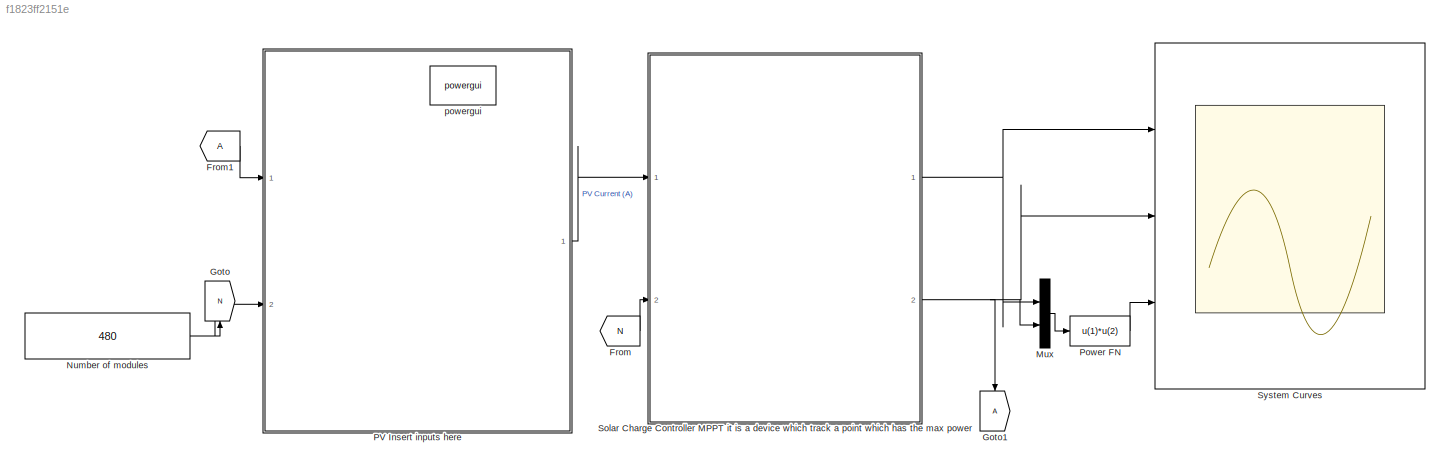
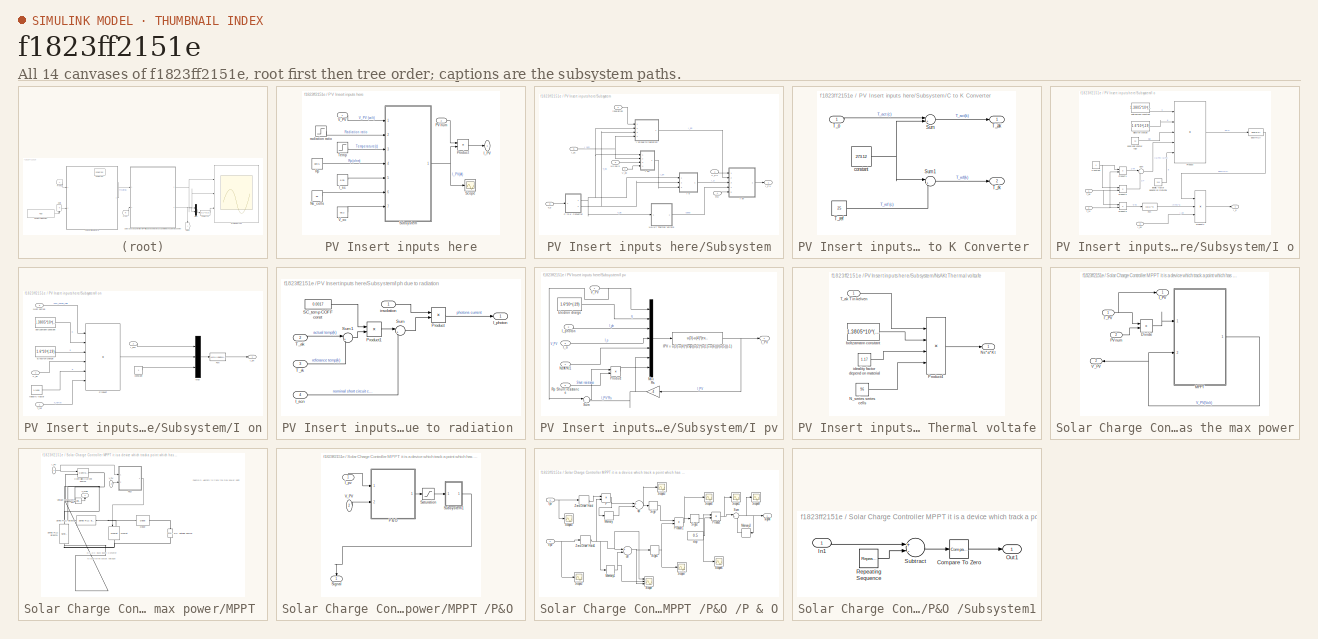
[diagram: thumbnail index - all 14 canvases of the model, root first then tree order]
MODEL slx_f1823ff2151e
KIND model
CONFIG AbsTol = auto
CONFIG EnableMultiTasking = on
CONFIG FixedStep = auto
CONFIG MaxStep = auto
CONFIG MinStep = .00000001
CONFIG RelTol = 1e-7
CONFIG SampleTimeConstraint = Unconstrained
CONFIG Solver = ode45
CONFIG SolverName = ode45
CONFIG StartTime = 0.0
CONFIG StopTime = 10
BLOCK [From] From
  GotoTag = N
BLOCK [From] From1
BLOCK [Goto] Goto
  GotoTag = N
BLOCK [Goto] Goto1
BLOCK [Mux] Mux
  DisplayOption = bar
  Inputs = 2
  Ports = [2, 1]
BLOCK [Constant] Number of modules
  Value = 480
BLOCK [SubSystem] PV Insert inputs here
  Ports = [2, 1]
  RequestExecContextInheritance = off
  Variant = off
BLOCK [Outport] PV Insert inputs here/I_PV
  IconDisplay = Port number
BLOCK [Constant] PV Insert inputs here/I_sc
  Value = 6.39
BLOCK [Constant] PV Insert inputs here/Ns_cells
  Value = 96
BLOCK [Inport] PV Insert inputs here/PV num
  IconDisplay = Port number
  Port = 2
BLOCK [Product] PV Insert inputs here/Product
  InputSameDT = off
  OutDataTypeStr = Inherit: Inherit via internal rule
  Ports = [2, 1]
  RndMeth = Floor
  SaturateOnIntegerOverflow = off
BLOCK [Constant] PV Insert inputs here/Rp
  Value = 884.5
BLOCK [Scope] PV Insert inputs here/Scope
  NumInputPorts = 1
  Ports = [1]
  ScopeSpecificationString = Simulink.scopes.TimeScopeBlockCfg('CurrentConfiguration', extmgr.ConfigurationSet(extmgr.Configuration('Core','General UI',true),extmgr.Configuration('Core','Source UI',true),extmgr.Configuration('Sources','WiredSimulink',true,'DataLoggingVariableName','ScopeData2'),extmgr.Configuration('Visuals','Time Domain',true,'SerializedDisplays',{struct('MinYLimReal','-1.69273','MaxYLimReal','7.2085','YLabe...<+1381ch>
BLOCK [SubSystem] PV Insert inputs here/Subsystem
  Ports = [7, 1]
  RequestExecContextInheritance = off
  Variant = off
BLOCK [SubSystem] PV Insert inputs here/Subsystem/C to K Converter 
  Ports = [1, 2]
  RequestExecContextInheritance = off
  Variant = off
BLOCK [Sum] PV Insert inputs here/Subsystem/C to K Converter /Sum
  IconShape = round
  InputSameDT = off
  Inputs = |++
  OutDataTypeStr = Inherit: Inherit via internal rule
  Ports = [2, 1]
  SaturateOnIntegerOverflow = off
BLOCK [Sum] PV Insert inputs here/Subsystem/C to K Converter /Sum1
  IconShape = round
  InputSameDT = off
  Inputs = |++
  OutDataTypeStr = Inherit: Inherit via internal rule
  Ports = [2, 1]
  SaturateOnIntegerOverflow = off
BLOCK [Outport] PV Insert inputs here/Subsystem/C to K Converter /T_ak
  IconDisplay = Port number
BLOCK [Inport] PV Insert inputs here/Subsystem/C to K Converter /T_o
  IconDisplay = Port number
BLOCK [Constant] PV Insert inputs here/Subsystem/C to K Converter /T_ref
  Value = 25
BLOCK [Outport] PV Insert inputs here/Subsystem/C to K Converter /T_rk
  IconDisplay = Port number
  Port = 2
BLOCK [Constant] PV Insert inputs here/Subsystem/C to K Converter /constant
  Value = 273.12
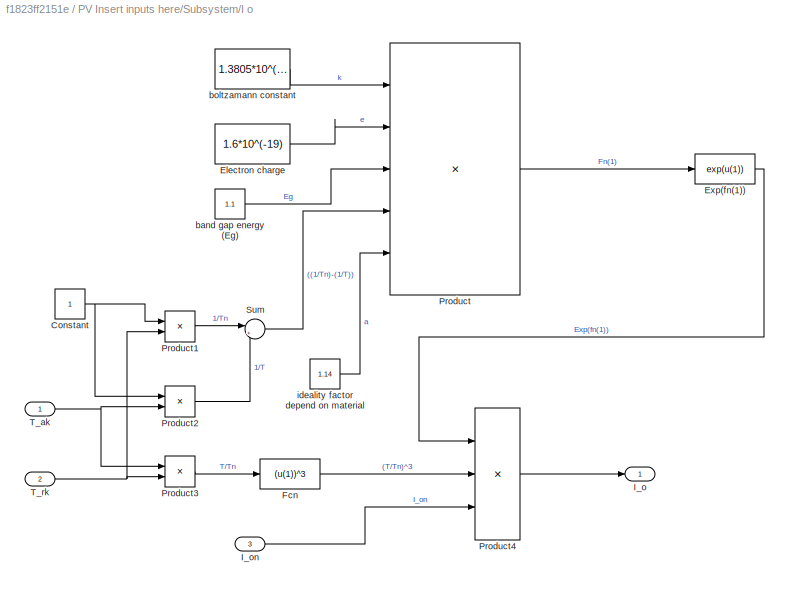
BLOCK [SubSystem] PV Insert inputs here/Subsystem/I o
  Ports = [3, 1]
  RequestExecContextInheritance = off
  Variant = off
BLOCK [Constant] PV Insert inputs here/Subsystem/I o/Constant
BLOCK [Constant] PV Insert inputs here/Subsystem/I o/Electron charge
  Value = 1.6*10^(-19)
BLOCK [Fcn] PV Insert inputs here/Subsystem/I o/Exp(fn(1))
  Expr = exp(u(1))
BLOCK [Fcn] PV Insert inputs here/Subsystem/I o/Fcn
  Expr = (u(1))^3
BLOCK [Outport] PV Insert inputs here/Subsystem/I o/I_o
  IconDisplay = Port number
BLOCK [Inport] PV Insert inputs here/Subsystem/I o/I_on
  IconDisplay = Port number
  Port = 3
BLOCK [Product] PV Insert inputs here/Subsystem/I o/Product
  InputSameDT = off
  Inputs = /***/
  OutDataTypeStr = Inherit: Inherit via internal rule
  Ports = [5, 1]
  RndMeth = Floor
  SaturateOnIntegerOverflow = off
BLOCK [Product] PV Insert inputs here/Subsystem/I o/Product1
  InputSameDT = off
  Inputs = */
  OutDataTypeStr = Inherit: Inherit via internal rule
  Ports = [2, 1]
  RndMeth = Floor
  SaturateOnIntegerOverflow = off
BLOCK [Product] PV Insert inputs here/Subsystem/I o/Product2
  InputSameDT = off
  Inputs = */
  OutDataTypeStr = Inherit: Inherit via internal rule
  Ports = [2, 1]
  RndMeth = Floor
  SaturateOnIntegerOverflow = off
BLOCK [Product] PV Insert inputs here/Subsystem/I o/Product3
  InputSameDT = off
  Inputs = */
  OutDataTypeStr = Inherit: Inherit via internal rule
  Ports = [2, 1]
  RndMeth = Floor
  SaturateOnIntegerOverflow = off
BLOCK [Product] PV Insert inputs here/Subsystem/I o/Product4
  InputSameDT = off
  Inputs = 3
  OutDataTypeStr = Inherit: Inherit via internal rule
  Ports = [3, 1]
  RndMeth = Floor
  SaturateOnIntegerOverflow = off
BLOCK [Sum] PV Insert inputs here/Subsystem/I o/Sum
  IconShape = round
  InputSameDT = off
  Inputs = |+-
  OutDataTypeStr = Inherit: Inherit via internal rule
  Ports = [2, 1]
  SaturateOnIntegerOverflow = off
BLOCK [Inport] PV Insert inputs here/Subsystem/I o/T_ak
  IconDisplay = Port number
BLOCK [Inport] PV Insert inputs here/Subsystem/I o/T_rk
  IconDisplay = Port number
  Port = 2
BLOCK [Constant] PV Insert inputs here/Subsystem/I o/band gap energy (Eg)
  Value = 1.1
BLOCK [Constant] PV Insert inputs here/Subsystem/I o/boltzamann constant
  Value = 1.3805*10^(-23)
BLOCK [Constant] PV Insert inputs here/Subsystem/I o/ideality factor depend on material
  Value = 1.14
BLOCK [SubSystem] PV Insert inputs here/Subsystem/I on
  Ports = [4, 1]
  RequestExecContextInheritance = off
  Variant = off
BLOCK [Constant] PV Insert inputs here/Subsystem/I on/Electron charge
  Value = 1.6*10^(-19)
BLOCK [Fcn] PV Insert inputs here/Subsystem/I on/Fcn
  Expr = (u(1))/(exp(u(2))-u(1))
BLOCK [Outport] PV Insert inputs here/Subsystem/I on/I_on
  IconDisplay = Port number
BLOCK [Inport] PV Insert inputs here/Subsystem/I on/I_scn
  IconDisplay = Port number
  Port = 2
BLOCK [Mux] PV Insert inputs here/Subsystem/I on/Mux
  DisplayOption = bar
  Inputs = 3
  Ports = [3, 1]
BLOCK [Inport] PV Insert inputs here/Subsystem/I on/Num series
  IconDisplay = Port number
  Port = 3
BLOCK [Product] PV Insert inputs here/Subsystem/I on/Product
  InputSameDT = off
  Inputs = //**//
  OutDataTypeStr = Inherit: Inherit via internal rule
  Ports = [6, 1]
  RndMeth = Floor
  SaturateOnIntegerOverflow = off
BLOCK [Inport] PV Insert inputs here/Subsystem/I on/T_ref
  IconDisplay = Port number
BLOCK [Inport] PV Insert inputs here/Subsystem/I on/V_oc
  IconDisplay = Port number
  Port = 4
BLOCK [Constant] PV Insert inputs here/Subsystem/I on/boltzamann constant
  Value = 1.3805*10^(-23)
BLOCK [Constant] PV Insert inputs here/Subsystem/I on/constant
BLOCK [Constant] PV Insert inputs here/Subsystem/I on/ideality factor
  Value = 1.1415
BLOCK [SubSystem] PV Insert inputs here/Subsystem/I ph due to radiation 
  Ports = [4, 1]
  RequestExecContextInheritance = off
  Variant = off
BLOCK [Outport] PV Insert inputs here/Subsystem/I ph due to radiation /I_photon
  IconDisplay = Port number
BLOCK [Inport] PV Insert inputs here/Subsystem/I ph due to radiation /I_scn
  IconDisplay = Port number
  Port = 4
BLOCK [Product] PV Insert inputs here/Subsystem/I ph due to radiation /Product
  InputSameDT = off
  OutDataTypeStr = Inherit: Inherit via internal rule
  Ports = [2, 1]
  RndMeth = Floor
  SaturateOnIntegerOverflow = off
BLOCK [Product] PV Insert inputs here/Subsystem/I ph due to radiation /Product1
  InputSameDT = off
  OutDataTypeStr = Inherit: Inherit via internal rule
  Ports = [2, 1]
  RndMeth = Floor
  SaturateOnIntegerOverflow = off
BLOCK [Constant] PV Insert inputs here/Subsystem/I ph due to radiation /SC_temp COFF const
  Value = 0.0017
BLOCK [Sum] PV Insert inputs here/Subsystem/I ph due to radiation /Sum
  IconShape = round
  InputSameDT = off
  Inputs = |++
  OutDataTypeStr = Inherit: Inherit via internal rule
  Ports = [2, 1]
  SaturateOnIntegerOverflow = off
BLOCK [Sum] PV Insert inputs here/Subsystem/I ph due to radiation /Sum1
  IconShape = round
  InputSameDT = off
  Inputs = |+-
  OutDataTypeStr = Inherit: Inherit via internal rule
  Ports = [2, 1]
  SaturateOnIntegerOverflow = off
BLOCK [Inport] PV Insert inputs here/Subsystem/I ph due to radiation /T_ak
  IconDisplay = Port number
  Port = 2
BLOCK [Inport] PV Insert inputs here/Subsystem/I ph due to radiation /T_rk
  IconDisplay = Port number
  Port = 3
BLOCK [Inport] PV Insert inputs here/Subsystem/I ph due to radiation /insolation
  IconDisplay = Port number
BLOCK [SubSystem] PV Insert inputs here/Subsystem/I pv
  Ports = [5, 1]
  RequestExecContextInheritance = off
  Variant = off
BLOCK [Constant] PV Insert inputs here/Subsystem/I pv/Electron charge
  Value = 1.6*10^(-19)
BLOCK [Fcn] PV Insert inputs here/Subsystem/I pv/IPV = u(3)-u(4)*(exp((u(2)*(u(1)+u(6)))//(u(5)))-1)
  Expr = u(3)-u(4)*(exp((u(2)*(u(1)+u(6)))/(u(5)))-1)-u(7)
BLOCK [Outport] PV Insert inputs here/Subsystem/I pv/I_PV
  IconDisplay = Port number
BLOCK [Inport] PV Insert inputs here/Subsystem/I pv/I_o
  IconDisplay = Port number
  Port = 3
BLOCK [Inport] PV Insert inputs here/Subsystem/I pv/I_photon
  IconDisplay = Port number
  Port = 2
BLOCK [Mux] PV Insert inputs here/Subsystem/I pv/Mux
  DisplayOption = bar
  Inputs = 7
  Ports = [7, 1]
BLOCK [Inport] PV Insert inputs here/Subsystem/I pv/Ns*A*Kt1
  IconDisplay = Port number
  Port = 4
BLOCK [Product] PV Insert inputs here/Subsystem/I pv/Product
  InputSameDT = off
  Inputs = */
  OutDataTypeStr = Inherit: Inherit via internal rule
  Ports = [2, 1]
  RndMeth = Floor
  SaturateOnIntegerOverflow = off
BLOCK [Inport] PV Insert inputs here/Subsystem/I pv/Rp Shunt resistance
  IconDisplay = Port number
  Port = 5
BLOCK [Gain] PV Insert inputs here/Subsystem/I pv/Rs
  Gain = .4
  OutDataTypeStr = Inherit: Inherit via internal rule
  ParamDataTypeStr = Inherit: Inherit via internal rule
  SaturateOnIntegerOverflow = off
BLOCK [Sum] PV Insert inputs here/Subsystem/I pv/Sum
  IconShape = round
  InputSameDT = off
  Inputs = |++
  OutDataTypeStr = Inherit: Inherit via internal rule
  Ports = [2, 1]
  SaturateOnIntegerOverflow = off
BLOCK [Inport] PV Insert inputs here/Subsystem/I pv/V_PV
  IconDisplay = Port number
BLOCK [Outport] PV Insert inputs here/Subsystem/I_PV
  IconDisplay = Port number
BLOCK [Inport] PV Insert inputs here/Subsystem/I_sc
  IconDisplay = Port number
  Port = 5
BLOCK [Inport] PV Insert inputs here/Subsystem/Ns cells
  IconDisplay = Port number
  Port = 6
BLOCK [SubSystem] PV Insert inputs here/Subsystem/NsAKt Thermal voltafe
  Ports = [1, 1]
  RequestExecContextInheritance = off
  Variant = off
BLOCK [Constant] PV Insert inputs here/Subsystem/NsAKt Thermal voltafe/N_series series cells
  Value = 96
BLOCK [Outport] PV Insert inputs here/Subsystem/NsAKt Thermal voltafe/Ns*a*Kt
  IconDisplay = Port number
BLOCK [Product] PV Insert inputs here/Subsystem/NsAKt Thermal voltafe/Product4
  InputSameDT = off
  Inputs = 4
  OutDataTypeStr = Inherit: Inherit via internal rule
  Ports = [4, 1]
  RndMeth = Floor
  SaturateOnIntegerOverflow = off
BLOCK [Inport] PV Insert inputs here/Subsystem/NsAKt Thermal voltafe/T_ak T in kelven
  IconDisplay = Port number
BLOCK [Constant] PV Insert inputs here/Subsystem/NsAKt Thermal voltafe/boltzamann constant
  Value = 1.3805*10^(-23)
BLOCK [Constant] PV Insert inputs here/Subsystem/NsAKt Thermal voltafe/ideality factor depend on material
  Value = 1.17
BLOCK [Inport] PV Insert inputs here/Subsystem/Rp
  IconDisplay = Port number
  Port = 4
BLOCK [Inport] PV Insert inputs here/Subsystem/T_o
  IconDisplay = Port number
  Port = 3
BLOCK [Inport] PV Insert inputs here/Subsystem/V_PV
  IconDisplay = Port number
BLOCK [Inport] PV Insert inputs here/Subsystem/V_oc
  IconDisplay = Port number
  Port = 7
BLOCK [Inport] PV Insert inputs here/Subsystem/insolation
  IconDisplay = Port number
  Port = 2
BLOCK [Step] PV Insert inputs here/Temp
  After = 25
  Before = 25
  SampleTime = 0
  Time = 5
BLOCK [Inport] PV Insert inputs here/V_PV
  IconDisplay = Port number
BLOCK [Constant] PV Insert inputs here/V_oc
  Value = 68.2
BLOCK [Step] PV Insert inputs here/radiation ratio
  Before = 1
  SampleTime = 0
BLOCK [Fcn] Power FN 
  Expr = u(1)*u(2)
BLOCK [SubSystem] Solar Charge Controller MPPT it is a device which track a point which has the max power
  Ports = [2, 2]
  RequestExecContextInheritance = off
  Variant = off
BLOCK [Product] Solar Charge Controller MPPT it is a device which track a point which has the max power/Divide
  InputSameDT = off
  Inputs = */
  OutDataTypeStr = Inherit: Inherit via internal rule
  Ports = [2, 1]
  RndMeth = Floor
  SaturateOnIntegerOverflow = off
BLOCK [Inport] Solar Charge Controller MPPT it is a device which track a point which has the max power/I'_PV
  IconDisplay = Port number
BLOCK [Outport] Solar Charge Controller MPPT it is a device which track a point which has the max power/I_PV
  IconDisplay = Port number
BLOCK [SubSystem] Solar Charge Controller MPPT it is a device which track a point which has the max power/MPPT 
  Ports = [2, 1]
  RequestExecContextInheritance = off
  Variant = off
BLOCK [Reference] Solar Charge Controller MPPT it is a device which track a point which has the max power/MPPT /Controlled Current Source  REF=powerlib/Electrical
Sources/Controlled Current Source
  Ports = [1, 0, 0, 0, 0, 1, 1]
  SourceBlock = powerlib/Electrical\nSources/Controlled Current Source
  SourceProductBaseCode = PS
  SourceProductName = Simscape Power Systems
  SourceType = Controlled Current Source
BLOCK [Reference] Solar Charge Controller MPPT it is a device which track a point which has the max power/MPPT /DC Voltage Source  REF=powerlib/Electrical
Sources/DC Voltage Source
  Ports = [0, 0, 0, 0, 0, 1, 1]
  SourceBlock = powerlib/Electrical\nSources/DC Voltage Source
  SourceProductBaseCode = PS
  SourceProductName = Simscape Power Systems
  SourceType = DC Voltage Source
BLOCK [Reference] Solar Charge Controller MPPT it is a device which track a point which has the max power/MPPT /Diode  REF=powerlib/Power
Electronics/Diode
  Ports = [0, 0, 0, 0, 0, 1, 1]
  SourceBlock = powerlib/Power\nElectronics/Diode
  SourceProductBaseCode = PS
  SourceProductName = Simscape Power Systems
  SourceType = Diode
BLOCK [Inport] Solar Charge Controller MPPT it is a device which track a point which has the max power/MPPT /I_PV
  IconDisplay = Port number
BLOCK [Reference] Solar Charge Controller MPPT it is a device which track a point which has the max power/MPPT /Mosfet  REF=powerlib/Power
Electronics/Mosfet
  Ports = [1, 0, 0, 0, 0, 1, 1]
  SourceBlock = powerlib/Power\nElectronics/Mosfet
  SourceProductBaseCode = PS
  SourceProductName = Simscape Power Systems
  SourceType = Mosfet
BLOCK [SubSystem] Solar Charge Controller MPPT it is a device which track a point which has the max power/MPPT /P&O 
  Ports = [2, 1]
  RequestExecContextInheritance = off
  Variant = off
BLOCK [Inport] Solar Charge Controller MPPT it is a device which track a point which has the max power/MPPT /P&O /I_pv
  IconDisplay = Port number
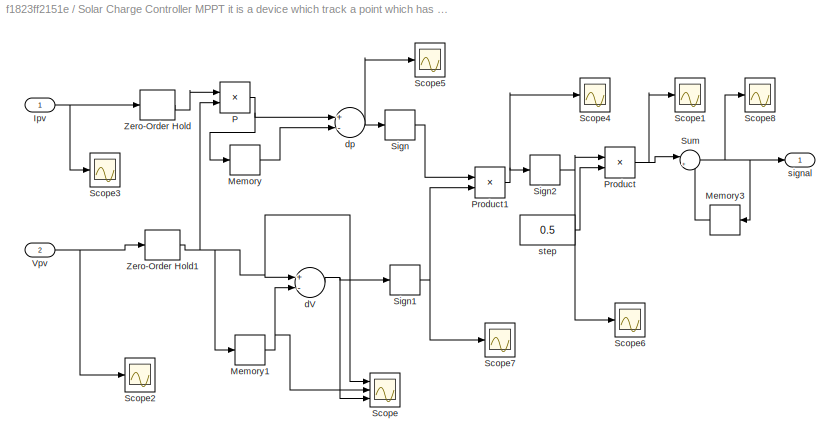
BLOCK [SubSystem] Solar Charge Controller MPPT it is a device which track a point which has the max power/MPPT /P&O /P & O
  Ports = [2, 1]
  RequestExecContextInheritance = off
  Variant = off
BLOCK [Inport] Solar Charge Controller MPPT it is a device which track a point which has the max power/MPPT /P&O /P & O/Ipv
  IconDisplay = Port number
BLOCK [Memory] Solar Charge Controller MPPT it is a device which track a point which has the max power/MPPT /P&O /P & O/Memory
  InheritSampleTime = on
BLOCK [Memory] Solar Charge Controller MPPT it is a device which track a point which has the max power/MPPT /P&O /P & O/Memory1
  InheritSampleTime = on
BLOCK [Memory] Solar Charge Controller MPPT it is a device which track a point which has the max power/MPPT /P&O /P & O/Memory3
  InheritSampleTime = on
BLOCK [Product] Solar Charge Controller MPPT it is a device which track a point which has the max power/MPPT /P&O /P & O/P
  InputSameDT = off
  OutDataTypeStr = Inherit: Inherit via internal rule
  Ports = [2, 1]
  SaturateOnIntegerOverflow = off
BLOCK [Product] Solar Charge Controller MPPT it is a device which track a point which has the max power/MPPT /P&O /P & O/Product
  InputSameDT = off
  OutDataTypeStr = Inherit: Inherit via internal rule
  Ports = [2, 1]
  SaturateOnIntegerOverflow = off
BLOCK [Product] Solar Charge Controller MPPT it is a device which track a point which has the max power/MPPT /P&O /P & O/Product1
  InputSameDT = off
  OutDataTypeStr = Inherit: Inherit via internal rule
  Ports = [2, 1]
  SaturateOnIntegerOverflow = off
BLOCK [Scope] Solar Charge Controller MPPT it is a device which track a point which has the max power/MPPT /P&O /P & O/Scope
  NumInputPorts = 3
  Ports = [3]
  ScopeSpecificationString = C++SS(StrPVP('Location','[11, 60, 1027, 737]'),StrPVP('Open','off'),StrPVP('ZoomMode','yonly'),MxPVP('AxesTitles',53,'struct(''axes1'',''%<SignalLabel>'',''axes2'',''%<SignalLabel>'',''axes3'',''%<SignalLabel>'')'),MxPVP('ScopeGraphics',56,'struct(''FigureColor'',''[0.5 0.5 0.5]'',''AxesColor'',''[0 0 0]'',''AxesTickColor'',''[1 1 1]'',''LineColors'',''[1 1 0;1 0 1;0 1 1;1 0 0;0 1 0;0 0 1]'',''Lin...<+378ch>
BLOCK [Scope] Solar Charge Controller MPPT it is a device which track a point which has the max power/MPPT /P&O /P & O/Scope1
  NumInputPorts = 1
  Ports = [1]
  ScopeSpecificationString = C++SS(StrPVP('Location','[11, 60, 1027, 737]'),StrPVP('Open','off'),StrPVP('ZoomMode','yonly'),MxPVP('AxesTitles',53,'struct(''axes1'',''%<SignalLabel>'')'),MxPVP('ScopeGraphics',56,'struct(''FigureColor'',''[0.5 0.5 0.5]'',''AxesColor'',''[0 0 0]'',''AxesTickColor'',''[1 1 1]'',''LineColors'',''[1 1 0;1 0 1;0 1 1;1 0 0;0 1 0;0 0 1]'',''LineStyles'',''-|-|-|-|-|-'',''LineWidths'',''[0.5 0.5 0.5 0....<+320ch>
BLOCK [Scope] Solar Charge Controller MPPT it is a device which track a point which has the max power/MPPT /P&O /P & O/Scope2
  NumInputPorts = 1
  Ports = [1]
  ScopeSpecificationString = C++SS(StrPVP('Location','[1, 52, 1017, 729]'),StrPVP('Open','off'),StrPVP('ZoomMode','yonly'),MxPVP('AxesTitles',53,'struct(''axes1'',''%<SignalLabel>'')'),StrPVP('YMin','-11'),StrPVP('YMax','10'),StrPVP('SaveName','ScopeData35'),StrPVP('DataFormat','StructureWithTime'),StrPVP('LimitDataPoints','off'),StrPVP('BlockParamSampleTime','0'),StrPVP('Decimation','1'),StrPVP('BlockParamSampleInput','off')...<+1ch>
BLOCK [Scope] Solar Charge Controller MPPT it is a device which track a point which has the max power/MPPT /P&O /P & O/Scope3
  NumInputPorts = 1
  Ports = [1]
  ScopeSpecificationString = C++SS(StrPVP('Location','[1, 52, 1017, 729]'),StrPVP('Open','off'),StrPVP('ZoomMode','yonly'),MxPVP('AxesTitles',53,'struct(''axes1'',''%<SignalLabel>'')'),StrPVP('YMin','-11'),StrPVP('YMax','10'),StrPVP('SaveName','ScopeData36'),StrPVP('DataFormat','StructureWithTime'),StrPVP('LimitDataPoints','off'),StrPVP('BlockParamSampleTime','0'),StrPVP('Decimation','1'),StrPVP('BlockParamSampleInput','off')...<+1ch>
BLOCK [Scope] Solar Charge Controller MPPT it is a device which track a point which has the max power/MPPT /P&O /P & O/Scope4
  NumInputPorts = 1
  Ports = [1]
  ScopeSpecificationString = C++SS(StrPVP('Location','[11, 60, 1027, 737]'),StrPVP('Open','off'),StrPVP('ZoomMode','yonly'),MxPVP('AxesTitles',53,'struct(''axes1'',''%<SignalLabel>'')'),MxPVP('ScopeGraphics',56,'struct(''FigureColor'',''[0.5 0.5 0.5]'',''AxesColor'',''[0 0 0]'',''AxesTickColor'',''[1 1 1]'',''LineColors'',''[1 1 0;1 0 1;0 1 1;1 0 0;0 1 0;0 0 1]'',''LineStyles'',''-|-|-|-|-|-'',''LineWidths'',''[0.5 0.5 0.5 0....<+312ch>
BLOCK [Scope] Solar Charge Controller MPPT it is a device which track a point which has the max power/MPPT /P&O /P & O/Scope5
  NumInputPorts = 1
  Ports = [1]
  ScopeSpecificationString = C++SS(StrPVP('Location','[1, 49, 1367, 727]'),StrPVP('Open','off'),StrPVP('ZoomMode','yonly'),MxPVP('AxesTitles',53,'struct(''axes1'',''%<SignalLabel>'')'),MxPVP('ScopeGraphics',56,'struct(''FigureColor'',''[0.5 0.5 0.5]'',''AxesColor'',''[0 0 0]'',''AxesTickColor'',''[1 1 1]'',''LineColors'',''[1 1 0;1 0 1;0 1 1;1 0 0;0 1 0;0 0 1]'',''LineStyles'',''-|-|-|-|-|-'',''LineWidths'',''[0.5 0.5 0.5 0.5...<+310ch>
BLOCK [Scope] Solar Charge Controller MPPT it is a device which track a point which has the max power/MPPT /P&O /P & O/Scope6
  NumInputPorts = 1
  Ports = [1]
  ScopeSpecificationString = C++SS(StrPVP('Location','[1, 52, 1017, 729]'),StrPVP('Open','off'),StrPVP('ZoomMode','yonly'),MxPVP('AxesTitles',53,'struct(''axes1'',''%<SignalLabel>'')'),StrPVP('YMin','-11'),StrPVP('YMax','10'),StrPVP('SaveName','ScopeData38'),StrPVP('DataFormat','StructureWithTime'),StrPVP('LimitDataPoints','off'),StrPVP('BlockParamSampleTime','0'),StrPVP('Decimation','1'),StrPVP('BlockParamSampleInput','off')...<+1ch>
BLOCK [Scope] Solar Charge Controller MPPT it is a device which track a point which has the max power/MPPT /P&O /P & O/Scope7
  NumInputPorts = 1
  Ports = [1]
  ScopeSpecificationString = C++SS(StrPVP('Location','[11, 60, 1027, 737]'),StrPVP('Open','off'),StrPVP('ZoomMode','xonly'),MxPVP('AxesTitles',53,'struct(''axes1'',''%<SignalLabel>'')'),MxPVP('ScopeGraphics',56,'struct(''FigureColor'',''[0.5 0.5 0.5]'',''AxesColor'',''[0 0 0]'',''AxesTickColor'',''[1 1 1]'',''LineColors'',''[1 1 0;1 0 1;0 1 1;1 0 0;0 1 0;0 0 1]'',''LineStyles'',''-|-|-|-|-|-'',''LineWidths'',''[0.5 0.5 0.5 0....<+312ch>
BLOCK [Scope] Solar Charge Controller MPPT it is a device which track a point which has the max power/MPPT /P&O /P & O/Scope8
  NumInputPorts = 1
  Ports = [1]
  ScopeSpecificationString = C++SS(StrPVP('Location','[11, 60, 1027, 737]'),StrPVP('Open','off'),StrPVP('ZoomMode','yonly'),MxPVP('AxesTitles',53,'struct(''axes1'',''%<SignalLabel>'')'),MxPVP('ScopeGraphics',56,'struct(''FigureColor'',''[0.5 0.5 0.5]'',''AxesColor'',''[0 0 0]'',''AxesTickColor'',''[1 1 1]'',''LineColors'',''[1 1 0;1 0 1;0 1 1;1 0 0;0 1 0;0 0 1]'',''LineStyles'',''-|-|-|-|-|-'',''LineWidths'',''[0.5 0.5 0.5 0....<+319ch>
BLOCK [Signum] Solar Charge Controller MPPT it is a device which track a point which has the max power/MPPT /P&O /P & O/Sign
BLOCK [Signum] Solar Charge Controller MPPT it is a device which track a point which has the max power/MPPT /P&O /P & O/Sign1
BLOCK [Signum] Solar Charge Controller MPPT it is a device which track a point which has the max power/MPPT /P&O /P & O/Sign2
BLOCK [Sum] Solar Charge Controller MPPT it is a device which track a point which has the max power/MPPT /P&O /P & O/Sum
  IconShape = round
  InputSameDT = off
  Inputs = |++
  OutDataTypeStr = Inherit: Inherit via internal rule
  Ports = [2, 1]
  SaturateOnIntegerOverflow = off
BLOCK [Inport] Solar Charge Controller MPPT it is a device which track a point which has the max power/MPPT /P&O /P & O/Vpv
  IconDisplay = Port number
  Port = 2
BLOCK [ZeroOrderHold] Solar Charge Controller MPPT it is a device which track a point which has the max power/MPPT /P&O /P & O/Zero-Order Hold
  SampleTime = 0.002
BLOCK [ZeroOrderHold] Solar Charge Controller MPPT it is a device which track a point which has the max power/MPPT /P&O /P & O/Zero-Order Hold1
  SampleTime = 0.002
BLOCK [Sum] Solar Charge Controller MPPT it is a device which track a point which has the max power/MPPT /P&O /P & O/dV
  InputSameDT = off
  Inputs = +-
  OutDataTypeStr = Inherit: Inherit via internal rule
  Ports = [2, 1]
  SaturateOnIntegerOverflow = off
BLOCK [Sum] Solar Charge Controller MPPT it is a device which track a point which has the max power/MPPT /P&O /P & O/dp
  InputSameDT = off
  Inputs = +-
  OutDataTypeStr = Inherit: Inherit via internal rule
  Ports = [2, 1]
  SaturateOnIntegerOverflow = off
BLOCK [Outport] Solar Charge Controller MPPT it is a device which track a point which has the max power/MPPT /P&O /P & O/signal
  IconDisplay = Port number
BLOCK [Constant] Solar Charge Controller MPPT it is a device which track a point which has the max power/MPPT /P&O /P & O/step
  Value = 0.5
BLOCK [Saturate] Solar Charge Controller MPPT it is a device which track a point which has the max power/MPPT /P&O /Saturation
  InputPortMap = u0
  Ports = [1, 1]
  UpperLimit = 1
BLOCK [Outport] Solar Charge Controller MPPT it is a device which track a point which has the max power/MPPT /P&O /Signal
  IconDisplay = Port number
BLOCK [SubSystem] Solar Charge Controller MPPT it is a device which track a point which has the max power/MPPT /P&O /Subsystem1
  Ports = [1, 1]
  RequestExecContextInheritance = off
  Variant = off
BLOCK [Reference] Solar Charge Controller MPPT it is a device which track a point which has the max power/MPPT /P&O /Subsystem1/Compare To Zero  REF=simulink/Logic and Bit
Operations/Compare
To Zero
  Ports = [1, 1]
  SourceBlock = simulink/Logic and Bit\nOperations/Compare\nTo Zero
  SourceProductBaseCode = SL
  SourceProductName = Simulink
  SourceType = Compare To Zero
BLOCK [Inport] Solar Charge Controller MPPT it is a device which track a point which has the max power/MPPT /P&O /Subsystem1/In1
  IconDisplay = Port number
BLOCK [Outport] Solar Charge Controller MPPT it is a device which track a point which has the max power/MPPT /P&O /Subsystem1/Out1
  IconDisplay = Port number
BLOCK [Reference] Solar Charge Controller MPPT it is a device which track a point which has the max power/MPPT /P&O /Subsystem1/Repeating Sequence  REF=simulink/Sources/Repeating
Sequence
  Ports = [0, 1]
  SourceBlock = simulink/Sources/Repeating\nSequence
  SourceProductBaseCode = SL
  SourceProductName = Simulink
  SourceType = Repeating table
BLOCK [Sum] Solar Charge Controller MPPT it is a device which track a point which has the max power/MPPT /P&O /Subsystem1/Subtract
  InputSameDT = off
  Inputs = +-
  OutDataTypeStr = Inherit: Inherit via internal rule
  Ports = [2, 1]
  SaturateOnIntegerOverflow = off
BLOCK [Inport] Solar Charge Controller MPPT it is a device which track a point which has the max power/MPPT /P&O /V_PV
  IconDisplay = Port number
  Port = 2
BLOCK [Reference] Solar Charge Controller MPPT it is a device which track a point which has the max power/MPPT /Series RLC Branch  REF=powerlib/Elements/Series RLC Branch
  Ports = [0, 0, 0, 0, 0, 1, 1]
  SourceBlock = powerlib/Elements/Series RLC Branch
  SourceProductBaseCode = PS
  SourceProductName = Simscape Power Systems
  SourceType = Series RLC Branch
BLOCK [Reference] Solar Charge Controller MPPT it is a device which track a point which has the max power/MPPT /Series RLC Branch1  REF=powerlib/Elements/Series RLC Branch
  Ports = [0, 0, 0, 0, 0, 1, 1]
  SourceBlock = powerlib/Elements/Series RLC Branch
  SourceProductBaseCode = PS
  SourceProductName = Simscape Power Systems
  SourceType = Series RLC Branch
BLOCK [Inport] Solar Charge Controller MPPT it is a device which track a point which has the max power/MPPT /V_PV
  IconDisplay = Port number
  Port = 2
BLOCK [Outport] Solar Charge Controller MPPT it is a device which track a point which has the max power/MPPT /V_mpp
  IconDisplay = Port number
BLOCK [Reference] Solar Charge Controller MPPT it is a device which track a point which has the max power/MPPT /Voltage Measurement  REF=powerlib/Measurements/Voltage Measurement
  Ports = [0, 1, 0, 0, 0, 2]
  SourceBlock = powerlib/Measurements/Voltage Measurement
  SourceProductBaseCode = PS
  SourceProductName = Simscape Power Systems
  SourceType = Voltage Measurement
  UserDataPersistent = on
BLOCK [Inport] Solar Charge Controller MPPT it is a device which track a point which has the max power/PV num
  IconDisplay = Port number
  Port = 2
BLOCK [Outport] Solar Charge Controller MPPT it is a device which track a point which has the max power/V'_PV 
  IconDisplay = Port number
  Port = 2
BLOCK [Scope] System Curves
  NumInputPorts = 3
  Ports = [3]
  ScopeSpecificationString = Simulink.scopes.TimeScopeBlockCfg('CurrentConfiguration', extmgr.ConfigurationSet(extmgr.Configuration('Core','General UI',true),extmgr.Configuration('Core','Source UI',true),extmgr.Configuration('Sources','WiredSimulink',true,'DataLoggingVariableName','ScopeData1','DataLoggingSaveFormat','Array','DataLoggingDecimation','1','DataLoggingDecimateData',true),extmgr.Configuration('Visuals','Time Domai...<+3136ch>
BLOCK [Reference] powergui  REF=powerlib/powergui
  Ports = []
  Priority = 1
  SourceBlock = powerlib/powergui
  SourceProductBaseCode = PS
  SourceProductName = Simscape Power Systems
  SourceType = PSB option menu block
ANNOTATION Solar Charge Controller MPPT it is a device which track a point which has the max power/MPPT : DC_DC Buck Boost Conveter to control the output Voltaage
ANNOTATION Solar Charge Controller MPPT it is a device which track a point which has the max power/MPPT : P&O Algorism to track the max power point
LINE From1:1 -> PV Insert inputs here:1
LINE From:1 -> Solar Charge Controller MPPT it is a device which track a point which has the max power:2
LINE Mux:1 -> Power FN :1
NET Number of modules:1 -> Goto:1, PV Insert inputs here:2
LINE PV Insert inputs here/I_sc:1 -> PV Insert inputs here/Subsystem:5
LINE PV Insert inputs here/Ns_cells:1 -> PV Insert inputs here/Subsystem:6
LINE PV Insert inputs here/PV num:1 -> PV Insert inputs here/Product:1
LINE PV Insert inputs here/Product:1 -> PV Insert inputs here/I_PV:1
LINE PV Insert inputs here/Rp:1 -> PV Insert inputs here/Subsystem:4
LINE PV Insert inputs here/Subsystem/C to K Converter /Sum1:1 -> PV Insert inputs here/Subsystem/C to K Converter /T_rk:1
LINE PV Insert inputs here/Subsystem/C to K Converter /Sum:1 -> PV Insert inputs here/Subsystem/C to K Converter /T_ak:1
LINE PV Insert inputs here/Subsystem/C to K Converter /T_o:1 -> PV Insert inputs here/Subsystem/C to K Converter /Sum:1
LINE PV Insert inputs here/Subsystem/C to K Converter /T_ref:1 -> PV Insert inputs here/Subsystem/C to K Converter /Sum1:2
NET PV Insert inputs here/Subsystem/C to K Converter /constant:1 -> PV Insert inputs here/Subsystem/C to K Converter /Sum1:1, PV Insert inputs here/Subsystem/C to K Converter /Sum:2
NET PV Insert inputs here/Subsystem/C to K Converter :1 -> PV Insert inputs here/Subsystem/I o:1, PV Insert inputs here/Subsystem/I on:1, PV Insert inputs here/Subsystem/I ph due to radiation :2, PV Insert inputs here/Subsystem/NsAKt Thermal voltafe:1
NET PV Insert inputs here/Subsystem/C to K Converter :2 -> PV Insert inputs here/Subsystem/I o:2, PV Insert inputs here/Subsystem/I ph due to radiation :3
NET PV Insert inputs here/Subsystem/I o/Constant:1 -> PV Insert inputs here/Subsystem/I o/Product1:1, PV Insert inputs here/Subsystem/I o/Product2:1
LINE PV Insert inputs here/Subsystem/I o/Electron charge:1 -> PV Insert inputs here/Subsystem/I o/Product:2
LINE PV Insert inputs here/Subsystem/I o/Exp(fn(1)):1 -> PV Insert inputs here/Subsystem/I o/Product4:1
LINE PV Insert inputs here/Subsystem/I o/Fcn:1 -> PV Insert inputs here/Subsystem/I o/Product4:2
LINE PV Insert inputs here/Subsystem/I o/I_on:1 -> PV Insert inputs here/Subsystem/I o/Product4:3
LINE PV Insert inputs here/Subsystem/I o/Product1:1 -> PV Insert inputs here/Subsystem/I o/Sum:1
LINE PV Insert inputs here/Subsystem/I o/Product2:1 -> PV Insert inputs here/Subsystem/I o/Sum:2
LINE PV Insert inputs here/Subsystem/I o/Product3:1 -> PV Insert inputs here/Subsystem/I o/Fcn:1
LINE PV Insert inputs here/Subsystem/I o/Product4:1 -> PV Insert inputs here/Subsystem/I o/I_o:1
LINE PV Insert inputs here/Subsystem/I o/Product:1 -> PV Insert inputs here/Subsystem/I o/Exp(fn(1)):1
LINE PV Insert inputs here/Subsystem/I o/Sum:1 -> PV Insert inputs here/Subsystem/I o/Product:4
NET PV Insert inputs here/Subsystem/I o/T_ak:1 -> PV Insert inputs here/Subsystem/I o/Product2:2, PV Insert inputs here/Subsystem/I o/Product3:1
NET PV Insert inputs here/Subsystem/I o/T_rk:1 -> PV Insert inputs here/Subsystem/I o/Product1:2, PV Insert inputs here/Subsystem/I o/Product3:2
LINE PV Insert inputs here/Subsystem/I o/band gap energy (Eg):1 -> PV Insert inputs here/Subsystem/I o/Product:3
LINE PV Insert inputs here/Subsystem/I o/boltzamann constant:1 -> PV Insert inputs here/Subsystem/I o/Product:1
LINE PV Insert inputs here/Subsystem/I o/ideality factor depend on material:1 -> PV Insert inputs here/Subsystem/I o/Product:5
LINE PV Insert inputs here/Subsystem/I o:1 -> PV Insert inputs here/Subsystem/I pv:3
LINE PV Insert inputs here/Subsystem/I on/Electron charge:1 -> PV Insert inputs here/Subsystem/I on/Product:3
LINE PV Insert inputs here/Subsystem/I on/Fcn:1 -> PV Insert inputs here/Subsystem/I on/I_on:1
LINE PV Insert inputs here/Subsystem/I on/I_scn:1 -> PV Insert inputs here/Subsystem/I on/Mux:1
LINE PV Insert inputs here/Subsystem/I on/Mux:1 -> PV Insert inputs here/Subsystem/I on/Fcn:1
LINE PV Insert inputs here/Subsystem/I on/Num series:1 -> PV Insert inputs here/Subsystem/I on/Product:1
LINE PV Insert inputs here/Subsystem/I on/Product:1 -> PV Insert inputs here/Subsystem/I on/Mux:2
LINE PV Insert inputs here/Subsystem/I on/T_ref:1 -> PV Insert inputs here/Subsystem/I on/Product:6
LINE PV Insert inputs here/Subsystem/I on/V_oc:1 -> PV Insert inputs here/Subsystem/I on/Product:4
LINE PV Insert inputs here/Subsystem/I on/boltzamann constant:1 -> PV Insert inputs here/Subsystem/I on/Product:2
LINE PV Insert inputs here/Subsystem/I on/constant:1 -> PV Insert inputs here/Subsystem/I on/Mux:3
LINE PV Insert inputs here/Subsystem/I on/ideality factor:1 -> PV Insert inputs here/Subsystem/I on/Product:5
LINE PV Insert inputs here/Subsystem/I on:1 -> PV Insert inputs here/Subsystem/I o:3
LINE PV Insert inputs here/Subsystem/I ph due to radiation /I_scn:1 -> PV Insert inputs here/Subsystem/I ph due to radiation /Sum:2
LINE PV Insert inputs here/Subsystem/I ph due to radiation /Product1:1 -> PV Insert inputs here/Subsystem/I ph due to radiation /Sum:1
LINE PV Insert inputs here/Subsystem/I ph due to radiation /Product:1 -> PV Insert inputs here/Subsystem/I ph due to radiation /I_photon:1
LINE PV Insert inputs here/Subsystem/I ph due to radiation /SC_temp COFF const:1 -> PV Insert inputs here/Subsystem/I ph due to radiation /Product1:1
LINE PV Insert inputs here/Subsystem/I ph due to radiation /Sum1:1 -> PV Insert inputs here/Subsystem/I ph due to radiation /Product1:2
LINE PV Insert inputs here/Subsystem/I ph due to radiation /Sum:1 -> PV Insert inputs here/Subsystem/I ph due to radiation /Product:2
LINE PV Insert inputs here/Subsystem/I ph due to radiation /T_ak:1 -> PV Insert inputs here/Subsystem/I ph due to radiation /Sum1:1
LINE PV Insert inputs here/Subsystem/I ph due to radiation /T_rk:1 -> PV Insert inputs here/Subsystem/I ph due to radiation /Sum1:2
LINE PV Insert inputs here/Subsystem/I ph due to radiation /insolation:1 -> PV Insert inputs here/Subsystem/I ph due to radiation /Product:1
LINE PV Insert inputs here/Subsystem/I ph due to radiation :1 -> PV Insert inputs here/Subsystem/I pv:2
LINE PV Insert inputs here/Subsystem/I pv/Electron charge:1 -> PV Insert inputs here/Subsystem/I pv/Mux:2
NET PV Insert inputs here/Subsystem/I pv/IPV = u(3)-u(4)*(exp((u(2)*(u(1)+u(6)))//(u(5)))-1):1 -> PV Insert inputs here/Subsystem/I pv/I_PV:1, PV Insert inputs here/Subsystem/I pv/Rs:1
LINE PV Insert inputs here/Subsystem/I pv/I_o:1 -> PV Insert inputs here/Subsystem/I pv/Mux:4
LINE PV Insert inputs here/Subsystem/I pv/I_photon:1 -> PV Insert inputs here/Subsystem/I pv/Mux:3
LINE PV Insert inputs here/Subsystem/I pv/Mux:1 -> PV Insert inputs here/Subsystem/I pv/IPV = u(3)-u(4)*(exp((u(2)*(u(1)+u(6)))//(u(5)))-1):1
LINE PV Insert inputs here/Subsystem/I pv/Ns*A*Kt1:1 -> PV Insert inputs here/Subsystem/I pv/Mux:5
LINE PV Insert inputs here/Subsystem/I pv/Product:1 -> PV Insert inputs here/Subsystem/I pv/Mux:7
LINE PV Insert inputs here/Subsystem/I pv/Rp Shunt resistance:1 -> PV Insert inputs here/Subsystem/I pv/Product:2
NET PV Insert inputs here/Subsystem/I pv/Rs:1 -> PV Insert inputs here/Subsystem/I pv/Mux:6, PV Insert inputs here/Subsystem/I pv/Sum:2
LINE PV Insert inputs here/Subsystem/I pv/Sum:1 -> PV Insert inputs here/Subsystem/I pv/Product:1
NET PV Insert inputs here/Subsystem/I pv/V_PV:1 -> PV Insert inputs here/Subsystem/I pv/Mux:1, PV Insert inputs here/Subsystem/I pv/Sum:1
LINE PV Insert inputs here/Subsystem/I pv:1 -> PV Insert inputs here/Subsystem/I_PV:1
NET PV Insert inputs here/Subsystem/I_sc:1 -> PV Insert inputs here/Subsystem/I on:2, PV Insert inputs here/Subsystem/I ph due to radiation :4
LINE PV Insert inputs here/Subsystem/Ns cells:1 -> PV Insert inputs here/Subsystem/I on:3
LINE PV Insert inputs here/Subsystem/NsAKt Thermal voltafe/N_series series cells:1 -> PV Insert inputs here/Subsystem/NsAKt Thermal voltafe/Product4:4
LINE PV Insert inputs here/Subsystem/NsAKt Thermal voltafe/Product4:1 -> PV Insert inputs here/Subsystem/NsAKt Thermal voltafe/Ns*a*Kt:1
LINE PV Insert inputs here/Subsystem/NsAKt Thermal voltafe/T_ak T in kelven:1 -> PV Insert inputs here/Subsystem/NsAKt Thermal voltafe/Product4:1
LINE PV Insert inputs here/Subsystem/NsAKt Thermal voltafe/boltzamann constant:1 -> PV Insert inputs here/Subsystem/NsAKt Thermal voltafe/Product4:2
LINE PV Insert inputs here/Subsystem/NsAKt Thermal voltafe/ideality factor depend on material:1 -> PV Insert inputs here/Subsystem/NsAKt Thermal voltafe/Product4:3
LINE PV Insert inputs here/Subsystem/NsAKt Thermal voltafe:1 -> PV Insert inputs here/Subsystem/I pv:4
LINE PV Insert inputs here/Subsystem/Rp:1 -> PV Insert inputs here/Subsystem/I pv:5
LINE PV Insert inputs here/Subsystem/T_o:1 -> PV Insert inputs here/Subsystem/C to K Converter :1
LINE PV Insert inputs here/Subsystem/V_PV:1 -> PV Insert inputs here/Subsystem/I pv:1
LINE PV Insert inputs here/Subsystem/V_oc:1 -> PV Insert inputs here/Subsystem/I on:4
LINE PV Insert inputs here/Subsystem/insolation:1 -> PV Insert inputs here/Subsystem/I ph due to radiation :1
NET PV Insert inputs here/Subsystem:1 -> PV Insert inputs here/Product:2, PV Insert inputs here/Scope:1
LINE PV Insert inputs here/Temp:1 -> PV Insert inputs here/Subsystem:3
LINE PV Insert inputs here/V_PV:1 -> PV Insert inputs here/Subsystem:1
LINE PV Insert inputs here/V_oc:1 -> PV Insert inputs here/Subsystem:7
LINE PV Insert inputs here/radiation ratio:1 -> PV Insert inputs here/Subsystem:2
LINE PV Insert inputs here:1 -> Solar Charge Controller MPPT it is a device which track a point which has the max power:1
LINE Power FN :1 -> System Curves:3
LINE Solar Charge Controller MPPT it is a device which track a point which has the max power/Divide:1 -> Solar Charge Controller MPPT it is a device which track a point which has the max power/MPPT :1
NET Solar Charge Controller MPPT it is a device which track a point which has the max power/I'_PV:1 -> Solar Charge Controller MPPT it is a device which track a point which has the max power/Divide:1, Solar Charge Controller MPPT it is a device which track a point which has the max power/I_PV:1
NET Solar Charge Controller MPPT it is a device which track a point which has the max power/MPPT /I_PV:1 -> Solar Charge Controller MPPT it is a device which track a point which has the max power/MPPT /Controlled Current Source:1, Solar Charge Controller MPPT it is a device which track a point which has the max power/MPPT /P&O :1
LINE Solar Charge Controller MPPT it is a device which track a point which has the max power/MPPT /P&O /I_pv:1 -> Solar Charge Controller MPPT it is a device which track a point which has the max power/MPPT /P&O /P & O:1
NET Solar Charge Controller MPPT it is a device which track a point which has the max power/MPPT /P&O /P & O/Ipv:1 -> Solar Charge Controller MPPT it is a device which track a point which has the max power/MPPT /P&O /P & O/Scope3:1, Solar Charge Controller MPPT it is a device which track a point which has the max power/MPPT /P&O /P & O/Zero-Order Hold:1
NET Solar Charge Controller MPPT it is a device which track a point which has the max power/MPPT /P&O /P & O/Memory1:1 -> Solar Charge Controller MPPT it is a device which track a point which has the max power/MPPT /P&O /P & O/Scope:2, Solar Charge Controller MPPT it is a device which track a point which has the max power/MPPT /P&O /P & O/dV:2
LINE Solar Charge Controller MPPT it is a device which track a point which has the max power/MPPT /P&O /P & O/Memory3:1 -> Solar Charge Controller MPPT it is a device which track a point which has the max power/MPPT /P&O /P & O/Sum:2
LINE Solar Charge Controller MPPT it is a device which track a point which has the max power/MPPT /P&O /P & O/Memory:1 -> Solar Charge Controller MPPT it is a device which track a point which has the max power/MPPT /P&O /P & O/dp:2
NET Solar Charge Controller MPPT it is a device which track a point which has the max power/MPPT /P&O /P & O/P:1 -> Solar Charge Controller MPPT it is a device which track a point which has the max power/MPPT /P&O /P & O/Memory:1, Solar Charge Controller MPPT it is a device which track a point which has the max power/MPPT /P&O /P & O/dp:1
NET Solar Charge Controller MPPT it is a device which track a point which has the max power/MPPT /P&O /P & O/Product1:1 -> Solar Charge Controller MPPT it is a device which track a point which has the max power/MPPT /P&O /P & O/Scope4:1, Solar Charge Controller MPPT it is a device which track a point which has the max power/MPPT /P&O /P & O/Sign2:1
NET Solar Charge Controller MPPT it is a device which track a point which has the max power/MPPT /P&O /P & O/Product:1 -> Solar Charge Controller MPPT it is a device which track a point which has the max power/MPPT /P&O /P & O/Scope1:1, Solar Charge Controller MPPT it is a device which track a point which has the max power/MPPT /P&O /P & O/Sum:1
NET Solar Charge Controller MPPT it is a device which track a point which has the max power/MPPT /P&O /P & O/Sign1:1 -> Solar Charge Controller MPPT it is a device which track a point which has the max power/MPPT /P&O /P & O/Product1:2, Solar Charge Controller MPPT it is a device which track a point which has the max power/MPPT /P&O /P & O/Scope7:1
NET Solar Charge Controller MPPT it is a device which track a point which has the max power/MPPT /P&O /P & O/Sign2:1 -> Solar Charge Controller MPPT it is a device which track a point which has the max power/MPPT /P&O /P & O/Product:1, Solar Charge Controller MPPT it is a device which track a point which has the max power/MPPT /P&O /P & O/Scope6:1
LINE Solar Charge Controller MPPT it is a device which track a point which has the max power/MPPT /P&O /P & O/Sign:1 -> Solar Charge Controller MPPT it is a device which track a point which has the max power/MPPT /P&O /P & O/Product1:1
NET Solar Charge Controller MPPT it is a device which track a point which has the max power/MPPT /P&O /P & O/Sum:1 -> Solar Charge Controller MPPT it is a device which track a point which has the max power/MPPT /P&O /P & O/Memory3:1, Solar Charge Controller MPPT it is a device which track a point which has the max power/MPPT /P&O /P & O/Scope8:1, Solar Charge Controller MPPT it is a device which track a point which has the max power/MPPT /P&O /P & O/signal:1
NET Solar Charge Controller MPPT it is a device which track a point which has the max power/MPPT /P&O /P & O/Vpv:1 -> Solar Charge Controller MPPT it is a device which track a point which has the max power/MPPT /P&O /P & O/Scope2:1, Solar Charge Controller MPPT it is a device which track a point which has the max power/MPPT /P&O /P & O/Zero-Order Hold1:1
NET Solar Charge Controller MPPT it is a device which track a point which has the max power/MPPT /P&O /P & O/Zero-Order Hold1:1 -> Solar Charge Controller MPPT it is a device which track a point which has the max power/MPPT /P&O /P & O/Memory1:1, Solar Charge Controller MPPT it is a device which track a point which has the max power/MPPT /P&O /P & O/P:2, Solar Charge Controller MPPT it is a device which track a point which has the max power/MPPT /P&O /P & O/Scope:1, Solar Charge Controller MPPT it is a device which track a point which has the max power/MPPT /P&O /P & O/dV:1
LINE Solar Charge Controller MPPT it is a device which track a point which has the max power/MPPT /P&O /P & O/Zero-Order Hold:1 -> Solar Charge Controller MPPT it is a device which track a point which has the max power/MPPT /P&O /P & O/P:1
NET Solar Charge Controller MPPT it is a device which track a point which has the max power/MPPT /P&O /P & O/dV:1 -> Solar Charge Controller MPPT it is a device which track a point which has the max power/MPPT /P&O /P & O/Scope:3, Solar Charge Controller MPPT it is a device which track a point which has the max power/MPPT /P&O /P & O/Sign1:1
NET Solar Charge Controller MPPT it is a device which track a point which has the max power/MPPT /P&O /P & O/dp:1 -> Solar Charge Controller MPPT it is a device which track a point which has the max power/MPPT /P&O /P & O/Scope5:1, Solar Charge Controller MPPT it is a device which track a point which has the max power/MPPT /P&O /P & O/Sign:1
LINE Solar Charge Controller MPPT it is a device which track a point which has the max power/MPPT /P&O /P & O/step:1 -> Solar Charge Controller MPPT it is a device which track a point which has the max power/MPPT /P&O /P & O/Product:2
LINE Solar Charge Controller MPPT it is a device which track a point which has the max power/MPPT /P&O /P & O:1 -> Solar Charge Controller MPPT it is a device which track a point which has the max power/MPPT /P&O /Saturation:1
LINE Solar Charge Controller MPPT it is a device which track a point which has the max power/MPPT /P&O /Saturation:1 -> Solar Charge Controller MPPT it is a device which track a point which has the max power/MPPT /P&O /Subsystem1:1
LINE Solar Charge Controller MPPT it is a device which track a point which has the max power/MPPT /P&O /Subsystem1/Compare To Zero:1 -> Solar Charge Controller MPPT it is a device which track a point which has the max power/MPPT /P&O /Subsystem1/Out1:1
LINE Solar Charge Controller MPPT it is a device which track a point which has the max power/MPPT /P&O /Subsystem1/In1:1 -> Solar Charge Controller MPPT it is a device which track a point which has the max power/MPPT /P&O /Subsystem1/Subtract:1
LINE Solar Charge Controller MPPT it is a device which track a point which has the max power/MPPT /P&O /Subsystem1/Repeating Sequence:1 -> Solar Charge Controller MPPT it is a device which track a point which has the max power/MPPT /P&O /Subsystem1/Subtract:2
LINE Solar Charge Controller MPPT it is a device which track a point which has the max power/MPPT /P&O /Subsystem1/Subtract:1 -> Solar Charge Controller MPPT it is a device which track a point which has the max power/MPPT /P&O /Subsystem1/Compare To Zero:1
LINE Solar Charge Controller MPPT it is a device which track a point which has the max power/MPPT /P&O /Subsystem1:1 -> Solar Charge Controller MPPT it is a device which track a point which has the max power/MPPT /P&O /Signal:1
LINE Solar Charge Controller MPPT it is a device which track a point which has the max power/MPPT /P&O /V_PV:1 -> Solar Charge Controller MPPT it is a device which track a point which has the max power/MPPT /P&O /P & O:2
LINE Solar Charge Controller MPPT it is a device which track a point which has the max power/MPPT /P&O :1 -> Solar Charge Controller MPPT it is a device which track a point which has the max power/MPPT /Mosfet:1
LINE Solar Charge Controller MPPT it is a device which track a point which has the max power/MPPT /V_PV:1 -> Solar Charge Controller MPPT it is a device which track a point which has the max power/MPPT /P&O :2
LINE Solar Charge Controller MPPT it is a device which track a point which has the max power/MPPT /Voltage Measurement:1 -> Solar Charge Controller MPPT it is a device which track a point which has the max power/MPPT /V_mpp:1
NET Solar Charge Controller MPPT it is a device which track a point which has the max power/MPPT :1 -> Solar Charge Controller MPPT it is a device which track a point which has the max power/MPPT :2, Solar Charge Controller MPPT it is a device which track a point which has the max power/V'_PV :1
LINE Solar Charge Controller MPPT it is a device which track a point which has the max power/PV num:1 -> Solar Charge Controller MPPT it is a device which track a point which has the max power/Divide:2
NET Solar Charge Controller MPPT it is a device which track a point which has the max power:1 -> Mux:1, System Curves:1
NET Solar Charge Controller MPPT it is a device which track a point which has the max power:2 -> Goto1:1, Mux:2, System Curves:2
PNET net1: Solar Charge Controller MPPT it is a device which track a point which has the max power/MPPT /Controlled Current Source:LConn1 -- Solar Charge Controller MPPT it is a device which track a point which has the max power/MPPT /DC Voltage Source:LConn1 -- Solar Charge Controller MPPT it is a device which track a point which has the max power/MPPT /Mosfet:RConn1 -- Solar Charge Controller MPPT it is a device which track a point which has the max power/MPPT /Series RLC Branch1:RConn1 -- Solar Charge Controller MPPT it is a device which track a point which has the max power/MPPT /Voltage Measurement:LConn2
PNET net2: Solar Charge Controller MPPT it is a device which track a point which has the max power/MPPT /Controlled Current Source:RConn1 -- Solar Charge Controller MPPT it is a device which track a point which has the max power/MPPT /Series RLC Branch1:LConn1 -- Solar Charge Controller MPPT it is a device which track a point which has the max power/MPPT /Series RLC Branch:LConn1 -- Solar Charge Controller MPPT it is a device which track a point which has the max power/MPPT /Voltage Measurement:LConn1
PLINE Solar Charge Controller MPPT it is a device which track a point which has the max power/MPPT /DC Voltage Source:RConn1 -- Solar Charge Controller MPPT it is a device which track a point which has the max power/MPPT /Diode:RConn1
PNET net3: Solar Charge Controller MPPT it is a device which track a point which has the max power/MPPT /Diode:LConn1 -- Solar Charge Controller MPPT it is a device which track a point which has the max power/MPPT /Mosfet:LConn1 -- Solar Charge Controller MPPT it is a device which track a point which has the max power/MPPT /Series RLC Branch:RConn1
note: NET lines group one-source signal fan-out (src -> all destinations, sorted); 1:1 wires keep LINE; PNET lines group multi-terminal physical nets as a canonical sorted terminal list (undirected conserving connections); 2-terminal nets keep the pairwise PLINE form
